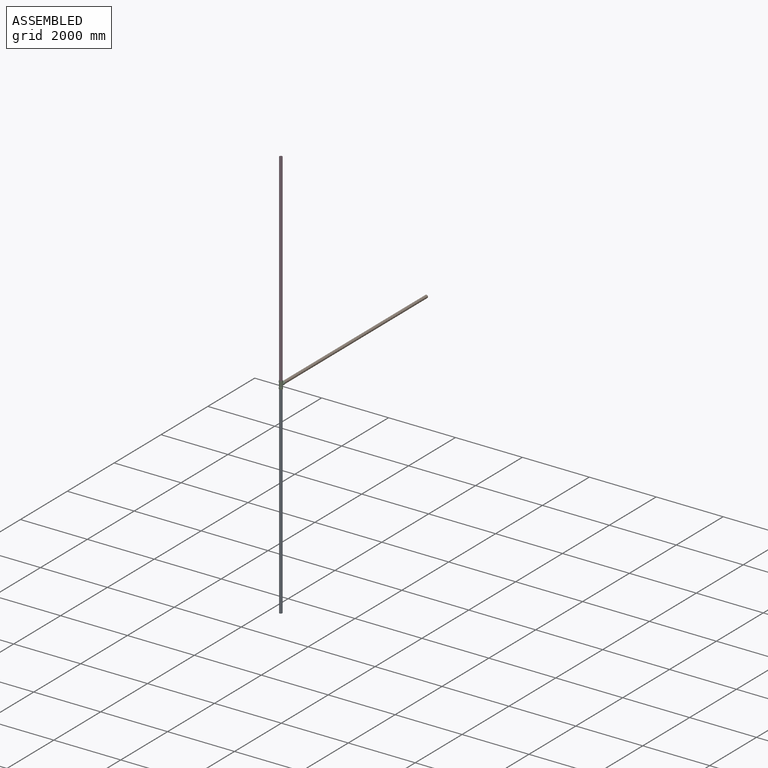
[diagram: assembled view]
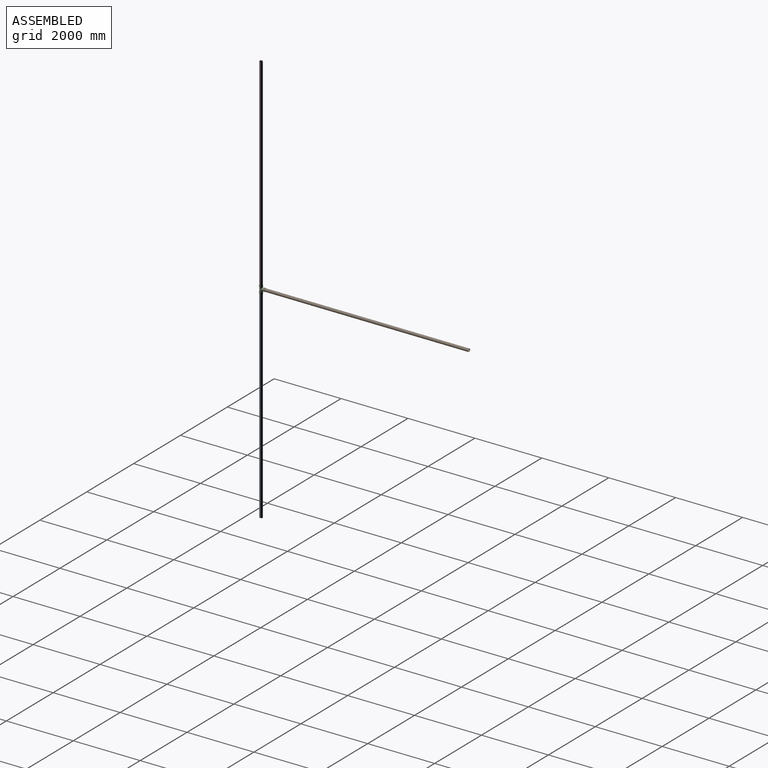
[diagram: assembled view, second angle]
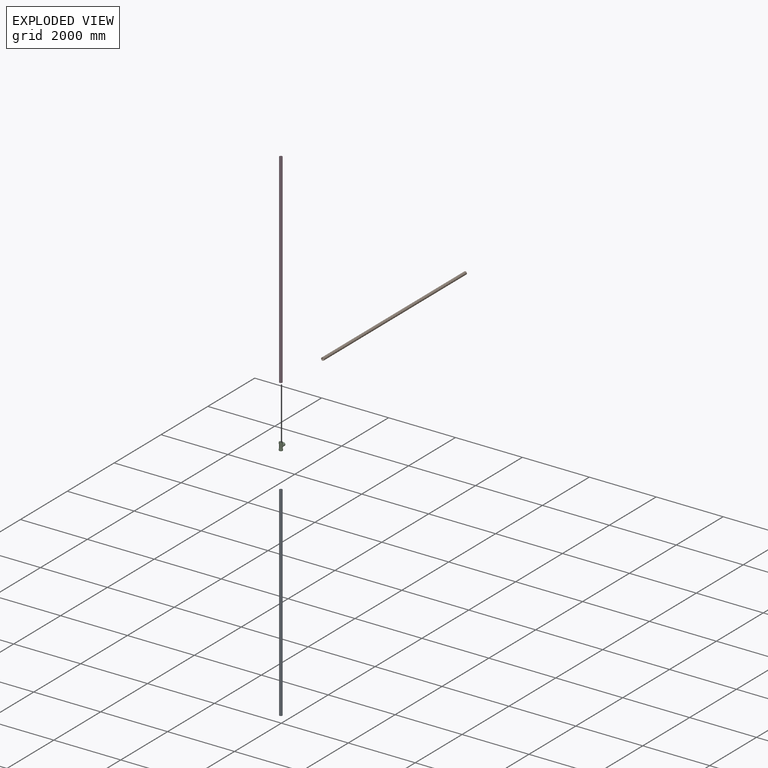
[diagram: exploded view]
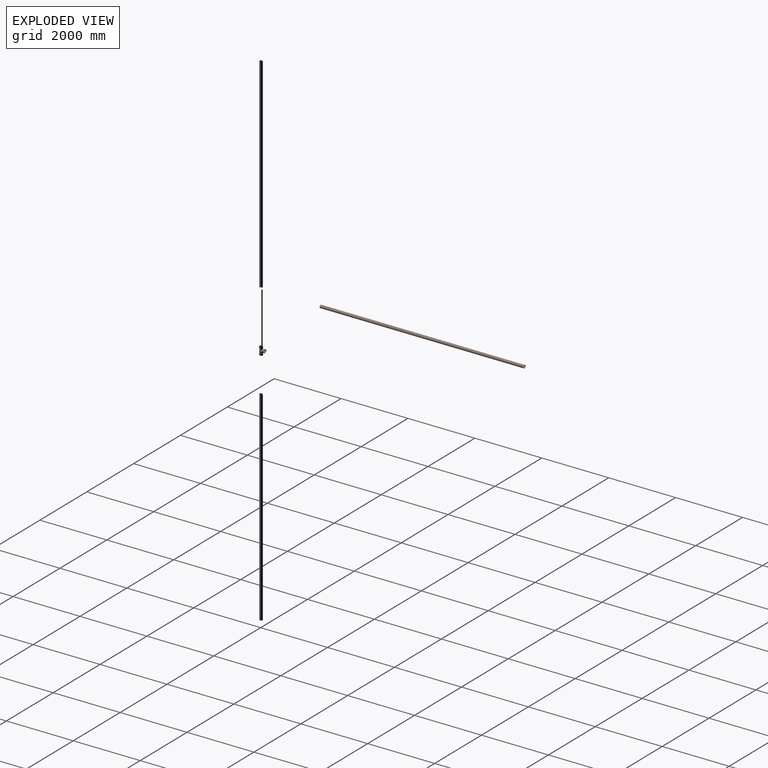
[diagram: exploded view, second angle]
ASSEMBLY  parts=4 mates=2
PART A: 4 faces, bbox 88.9x88.9x6096 mm
  f0: cylinder r=44.45mm len=6096mm, axis (0,0,-1), area 1702537.1mm2, adj f1,f2
  f1: plane 88.9x88.9mm, normal (0,0,1), area 689.1mm2, adj f0,f3
  f2: plane 88.9x88.9mm, normal (0,0,-1), area 689.1mm2, adj f0,f3
  f3: cylinder r=41.91mm len=6096mm, axis (0,0,-1), area 1605249.3mm2, adj f1,f2
PART B: same geometry as A
PART C: 33 faces, bbox 108x174.7x228.6 mm
  f0: cylinder r=44.45mm len=111.43mm, axis (0,0,-1), area 19627.1mm2, adj f1,f30,f32
  f1: torus R=70.11mm, axis (1,0,0), area 1624mm2, adj f0,f3,f31
  f2: torus R=70.11mm, axis (1,0,0), area 13623.1mm2, adj f3,f29,f30
  f3: cylinder r=44.45mm len=88.9mm, axis (0,0,-1), area 1088.2mm2, adj f1,f2,f31
  f4: cylinder r=50.8mm len=101.6mm, axis (0,0,-1), area 16214.6mm2, adj f5,f6
  f5: plane 101.6x101.6mm, normal (0,0,1), area 981.7mm2, adj f4,f17
  f6: plane 101.6x101.6mm, normal (0,0,-1), area 981.7mm2, adj f4,f32
  f7: cylinder r=50.8mm len=101.6mm, axis (0,-1,0), area 16214.6mm2, adj f8,f9
  f8: plane 101.6x101.6mm, normal (0,1,0), area 981.7mm2, adj f7,f19
  f9: plane 101.6x101.6mm, normal (0,-1,0), area 970.2mm2, adj f7,f29
  f10: plane 101.6x101.6mm, normal (0,0,1), area 981.7mm2, adj f11,f31
  f11: cylinder r=50.8mm len=101.6mm, axis (0,0,1), area 16214.6mm2, adj f10,f12
  f12: plane 101.6x101.6mm, normal (0,0,-1), area 498.8mm2, adj f11,f25
  f13: cylinder r=41.27mm len=116.19mm, axis (0,0,-1), area 20249.7mm2, adj f14,f15,f28
  f14: torus R=70.11mm, axis (1,0,0), area 1939.3mm2, adj f13,f16,f24
  f15: torus R=70.11mm, axis (1,0,0), area 14836.8mm2, adj f13,f16,f27
  f16: cylinder r=41.27mm len=82.55mm, axis (0,0,-1), area 1644.2mm2, adj f14,f15,f23
  f17: cylinder r=47.62mm len=95.25mm, axis (0,0,-1), area 14251.1mm2, adj f5,f18
  f18: plane 95.25x95.25mm, normal (0,0,1), area 1353.9mm2, adj f17,f28
  f19: cylinder r=47.62mm len=95.25mm, axis (0,-1,0), area 14251.1mm2, adj f8,f20
  f20: plane 95.28x95.28mm, normal (0,1,0), area 1354.1mm2, adj f19,f27
  f21: plane 92.11x92.11mm, normal (0,0,-1), area 890.4mm2, adj f23,f24,f26
  f22: cylinder r=47.62mm len=95.25mm, axis (0,0,1), area 13301.1mm2, adj f25,f26
  f23: cone r=42.86mm half-angle=45deg, axis (0,0,-1), area 296.3mm2, adj f16,f21,f24
  f24: bspline ~85.72x42.92mm, area 304.1mm2, adj f14,f21,f23
  f25: cone r=49.21mm half-angle=45deg, axis (0,0,-1), area 683mm2, adj f12,f22
  f26: cone r=47.62mm half-angle=45deg, axis (0,0,-1), area 660.6mm2, adj f21,f22
  f27: bspline ~85.76x85.73mm, area 594.8mm2, adj f15,f20
  f28: cone r=41.27mm half-angle=45deg, axis (0,0,1), area 593.4mm2, adj f13,f18
  f29: bspline ~95.45x95.28mm, area 1451.7mm2, adj f2,f9
  f30: bspline ~109.58x88.9mm, area 546.3mm2, adj f0,f2
  f31: torus R=47.62mm, axis (0,0,1), area 1315mm2, adj f1,f3,f10
  f32: torus R=47.62mm, axis (0,0,1), area 1429mm2, adj f0,f6
PART D: same geometry as A
PLACE A t=(-15.88,3.1,-6091.89)mm
PLACE B rot(axis=(-1,0,0),90deg) t=(-15.88,123.75,83.75)mm
PLACE C t=(-15.88,3.1,7.29)mm fixed
PLACE D rot(axis=(1,0,0),180deg) t=(-15.88,3.1,6233.46)mm
MATE fastened B.f0 <-> C.f7  axis (0,-1,0) through (-15.88,123.75,83.75)mm
MATE fastened C.f4 <-> A.f0  axis (0,0,-1) through (-15.88,3.1,4.11)mm
